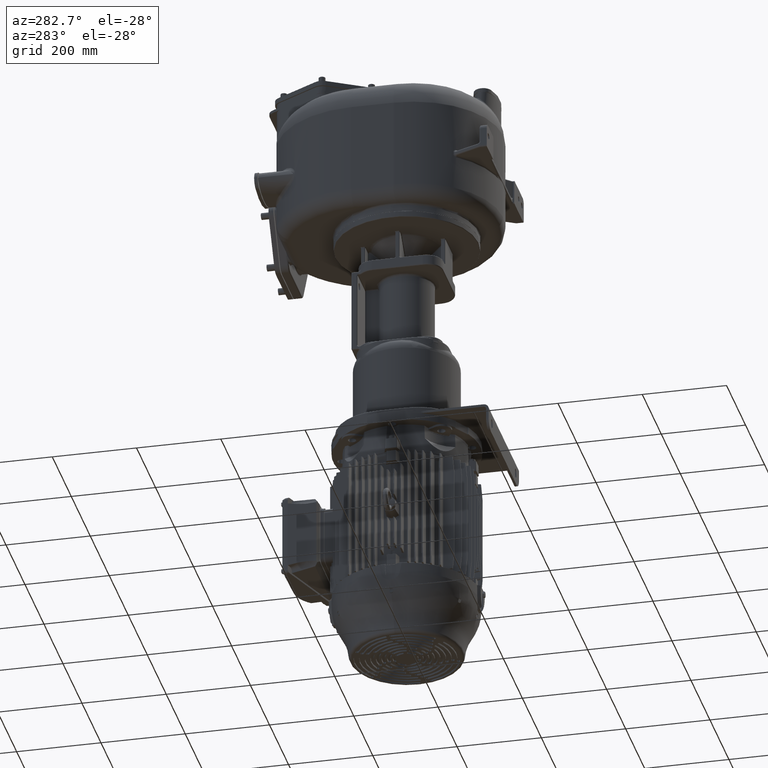
[diagram: clean part render]
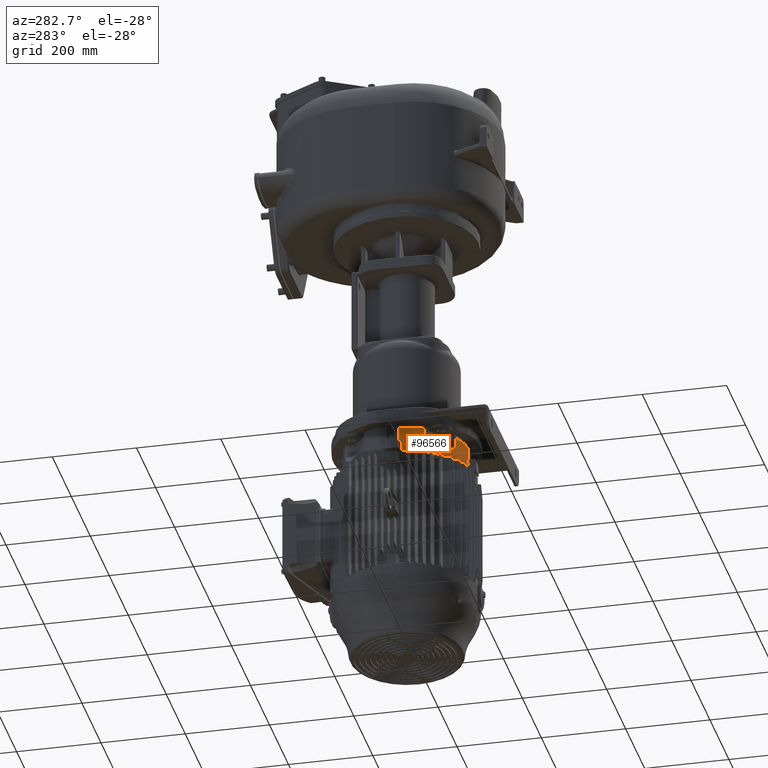
[diagram: same view with one face highlighted and labeled with its STEP entity id]
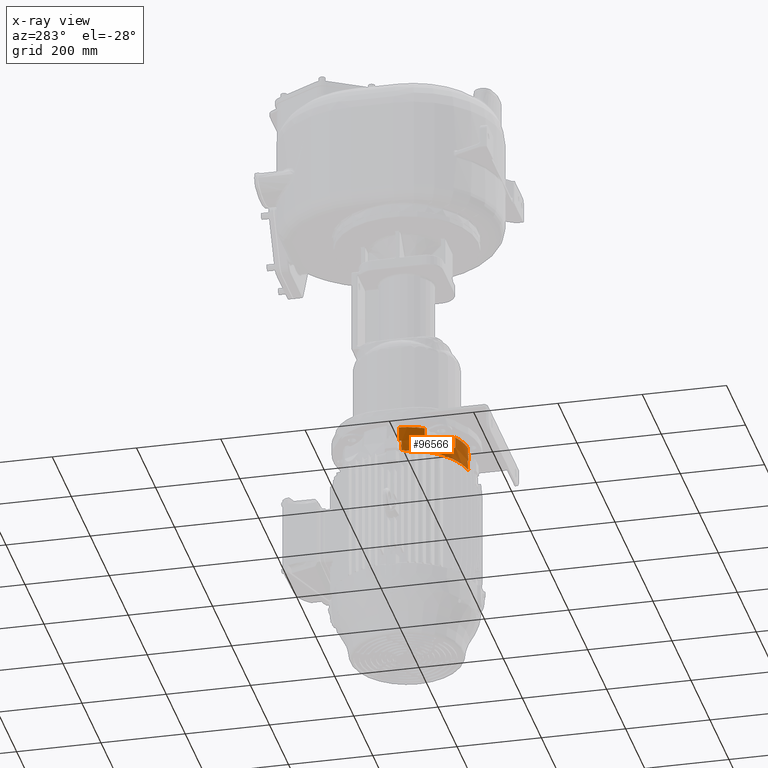
[diagram: x-ray of the same camera — body ghosted, the highlighted face saturated]
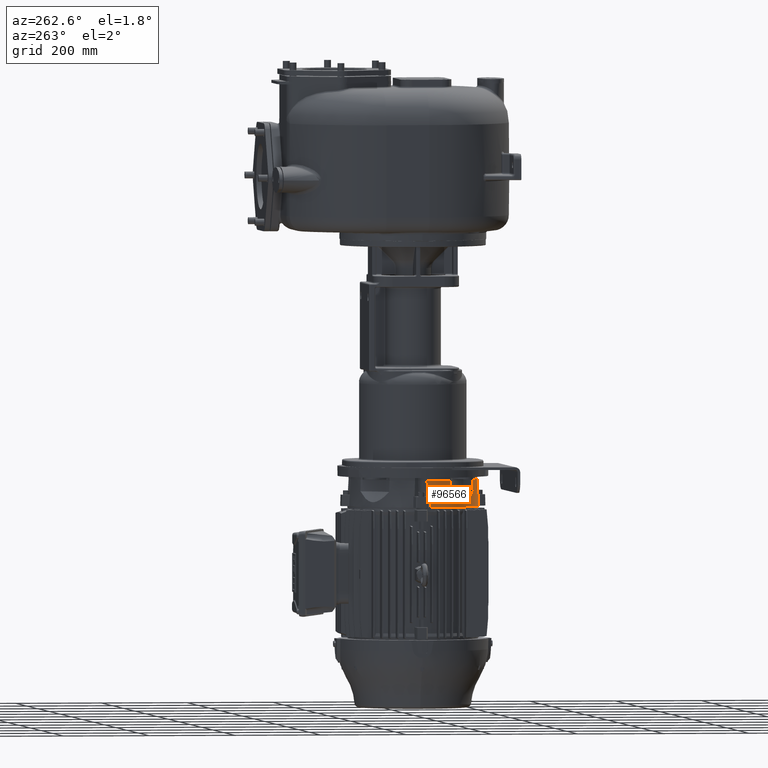
[diagram: same view with one face highlighted and labeled with its STEP entity id]
A machine part, auxiliary view. The second image highlights one B-rep face of the part: STEP entity #96566.
The next image is the same camera in x-ray: the body ghosted, the highlighted face saturated — about 0% of this face is hidden behind the body in this view.
A second angle (auxiliary view) of the same face is appended — the face is thin or edge-on in the first view.
In plain terms, the highlighted conical surface has half-angle 3 deg.
Its self-contained STEP definition (entity closure, byte-faithful):
#13877=CARTESIAN_POINT('',(0.E0,2.29E2,-7.674E2));
#13878=DIRECTION('',(0.E0,0.E0,-1.E0));
#13879=DIRECTION('',(-1.009222502529E-1,-9.948943156958E-1,0.E0));
#13880=AXIS2_PLACEMENT_3D('',#13877,#13878,#13879);
#14160=CARTESIAN_POINT('',(0.E0,2.29E2,-7.674E2));
#14161=DIRECTION('',(0.E0,0.E0,-1.E0));
#14162=DIRECTION('',(-9.900676829128E-1,-1.405915475827E-1,0.E0));
#14163=AXIS2_PLACEMENT_3D('',#14160,#14161,#14162);
#34868=CARTESIAN_POINT('',(-1.399247842907E1,8.093254581127E1,-7.3095E2));
#34869=CARTESIAN_POINT('',(-1.412558388974E1,8.073500678537E1,
-7.349414991750E2));
#34870=CARTESIAN_POINT('',(-1.439270359768E1,8.033822506534E1,
-7.429634889598E2));
#34871=CARTESIAN_POINT('',(-1.479607760655E1,7.973798182271E1,
-7.551127230926E2));
#34872=CARTESIAN_POINT('',(-1.506683293540E1,7.933437050553E1,
-7.632911631350E2));
#34873=CARTESIAN_POINT('',(-1.520266515202E1,7.913170925861E1,-7.674E2));
#34875=CARTESIAN_POINT('',(0.E0,2.29E2,-7.934E2));
#34876=DIRECTION('',(0.E0,0.E0,1.E0));
#34877=DIRECTION('',(-9.899239479024E-1,-1.416000613322E-1,0.E0));
#34878=AXIS2_PLACEMENT_3D('',#34875,#34876,#34877);
#34880=CARTESIAN_POINT('',(-1.491412189571E2,2.078216551823E2,
-7.673999977903E2));
#34881=CARTESIAN_POINT('',(-1.492877060444E2,2.077835970678E2,
-7.702695580529E2));
#34882=CARTESIAN_POINT('',(-1.495813778442E2,2.077073010814E2,
-7.760215539741E2));
#34883=CARTESIAN_POINT('',(-1.500237618481E2,2.075923520274E2,
-7.846877791328E2));
#34884=CARTESIAN_POINT('',(-1.503199791248E2,2.075153717713E2,
-7.904915873142E2));
#34885=CARTESIAN_POINT('',(-1.504684397905E2,2.074767907286E2,
-7.933999983559E2));
#34887=CARTESIAN_POINT('',(-2.152320925365E1,7.853156033290E1,
-7.933999983429E2));
#34888=CARTESIAN_POINT('',(-2.148462821112E1,7.868002099857E1,
-7.904915873053E2));
#34889=CARTESIAN_POINT('',(-2.140764798109E1,7.897623809253E1,
-7.846877790765E2));
#34890=CARTESIAN_POINT('',(-2.129269891495E1,7.941862219529E1,
-7.760215540119E2));
#34891=CARTESIAN_POINT('',(-2.121640293855E1,7.971229391034E1,
-7.702695580659E2));
#34892=CARTESIAN_POINT('',(-2.117834482408E1,7.985878099828E1,
-7.673999977952E2));
#34968=CARTESIAN_POINT('',(-1.498682907414E2,2.137973348480E2,-7.674E2));
#34969=CARTESIAN_POINT('',(-1.496656294826E2,2.139331670726E2,
-7.632911628944E2));
#34970=CARTESIAN_POINT('',(-1.492620181496E2,2.142039224121E2,
-7.551127225313E2));
#34971=CARTESIAN_POINT('',(-1.486617749070E2,2.146072964209E2,
-7.429634884008E2));
#34972=CARTESIAN_POINT('',(-1.482649932028E2,2.148744161182E2,
-7.349414989354E2));
#34973=CARTESIAN_POINT('',(-1.480674541887E2,2.150075215709E2,-7.3095E2));
#34979=CARTESIAN_POINT('',(0.E0,2.29E2,-7.3095E2));
#34980=DIRECTION('',(0.E0,0.E0,1.E0));
#34981=DIRECTION('',(-9.955644946790E-1,-9.408154406972E-2,0.E0));
#34982=AXIS2_PLACEMENT_3D('',#34979,#34980,#34981);
#35430=CARTESIAN_POINT('',(0.E0,2.29E2,-7.3095E2));
#35431=DIRECTION('',(0.E0,0.E0,1.E0));
#35432=DIRECTION('',(-4.784974831379E-1,-8.780889241021E-1,0.E0));
#35433=AXIS2_PLACEMENT_3D('',#35430,#35431,#35432);
#35462=CARTESIAN_POINT('',(-7.230096250948E1,9.744613334209E1,
-7.573898429615E2));
#35463=CARTESIAN_POINT('',(-7.217577605067E1,9.755129197055E1,
-7.544808688657E2));
#35464=CARTESIAN_POINT('',(-7.192475404999E1,9.776247943013E1,
-7.486437339712E2));
#35465=CARTESIAN_POINT('',(-7.154629681777E1,9.808186813008E1,
-7.398308013251E2));
#35466=CARTESIAN_POINT('',(-7.129268680946E1,9.829656216414E1,
-7.339166993821E2));
#35467=CARTESIAN_POINT('',(-7.116555938124E1,9.840435075978E1,-7.3095E2));
#35469=CARTESIAN_POINT('',(-1.305956492402E2,1.578344406188E2,-7.3095E2));
#35470=CARTESIAN_POINT('',(-1.307034378377E2,1.577073131884E2,
-7.339166994329E2));
#35471=CARTESIAN_POINT('',(-1.309181318742E2,1.574537031772E2,
-7.398308014435E2));
#35472=CARTESIAN_POINT('',(-1.312375205741E2,1.570752459449E2,
-7.486437340891E2));
#35473=CARTESIAN_POINT('',(-1.314487080313E2,1.568242239472E2,
-7.544808689163E2));
#35474=CARTESIAN_POINT('',(-1.315538666579E2,1.566990374905E2,
-7.573898429615E2));
#35481=CARTESIAN_POINT('',(-1.315538666579E2,1.566990374905E2,
-7.573898429615E2));
#35482=CARTESIAN_POINT('',(-1.313837306023E2,1.563461129976E2,
-7.577883040703E2));
#35483=CARTESIAN_POINT('',(-1.310446576361E2,1.556506262461E2,
-7.585683669428E2));
#35484=CARTESIAN_POINT('',(-1.305399539096E2,1.546374932748E2,
-7.596895873344E2));
#35485=CARTESIAN_POINT('',(-1.300413195705E2,1.536571247873E2,
-7.607597034692E2));
#35486=CARTESIAN_POINT('',(-1.295474558449E2,1.527053714381E2,
-7.617839969666E2));
#35487=CARTESIAN_POINT('',(-1.290575064904E2,1.517792869773E2,
-7.627662427201E2));
#35488=CARTESIAN_POINT('',(-1.285708196910E2,1.508765048299E2,
-7.637094926341E2));
#35489=CARTESIAN_POINT('',(-1.280864268636E2,1.499942745939E2,
-7.646170692404E2));
#35490=CARTESIAN_POINT('',(-1.276048549357E2,1.491327033829E2,
-7.654892737639E2));
#35491=CARTESIAN_POINT('',(-1.271273759872E2,1.482931678101E2,
-7.663252178462E2));
#35492=CARTESIAN_POINT('',(-1.266538502392E2,1.474745251165E2,
-7.671265959665E2));
#35493=CARTESIAN_POINT('',(-1.261834745075E2,1.466746106371E2,
-7.678960135095E2));
#35494=CARTESIAN_POINT('',(-1.257164516749E2,1.458930668403E2,
-7.686342693214E2));
#35495=CARTESIAN_POINT('',(-1.252525720331E2,1.451288775327E2,
-7.693427796822E2));
#35496=CARTESIAN_POINT('',(-1.247917496285E2,1.443812923317E2,
-7.700226731119E2));
#35497=CARTESIAN_POINT('',(-1.243338655296E2,1.436495506999E2,
-7.706750629528E2));
#35498=CARTESIAN_POINT('',(-1.238788035126E2,1.429329408676E2,
-7.713009900633E2));
#35499=CARTESIAN_POINT('',(-1.234264458325E2,1.422307882640E2,
-7.719014363753E2));
#35500=CARTESIAN_POINT('',(-1.229766742037E2,1.415424545522E2,
-7.724773265709E2));
#35501=CARTESIAN_POINT('',(-1.225293728141E2,1.408673383353E2,
-7.730295305274E2));
#35502=CARTESIAN_POINT('',(-1.220843939725E2,1.402048242035E2,
-7.735589016637E2));
#35503=CARTESIAN_POINT('',(-1.216417340862E2,1.395545341031E2,
-7.740660893385E2));
#35504=CARTESIAN_POINT('',(-1.212009067414E2,1.389154190984E2,
-7.745522269445E2));
#35505=CARTESIAN_POINT('',(-1.207626332567E2,1.382881989460E2,
-7.750170915840E2));
#35506=CARTESIAN_POINT('',(-1.203266934693E2,1.376722228340E2,
-7.754615260825E2));
#35507=CARTESIAN_POINT('',(-1.198920611207E2,1.370657613826E2,
-7.758870718382E2));
#35508=CARTESIAN_POINT('',(-1.194584451886E2,1.364681836597E2,
-7.762943958551E2));
#35509=CARTESIAN_POINT('',(-1.190265924470E2,1.358802819747E2,
-7.766832172562E2));
#35510=CARTESIAN_POINT('',(-1.185960426947E2,1.353011940264E2,
-7.770543794426E2));
#35511=CARTESIAN_POINT('',(-1.181667669435E2,1.347306721138E2,
-7.774082834257E2));
#35512=CARTESIAN_POINT('',(-1.177386308855E2,1.341683375180E2,
-7.777454053892E2));
#35513=CARTESIAN_POINT('',(-1.173115102420E2,1.336138418014E2,
-7.780661820809E2));
#35514=CARTESIAN_POINT('',(-1.168852876801E2,1.330668593226E2,
-7.783710205577E2));
#35515=CARTESIAN_POINT('',(-1.164598395990E2,1.325270698311E2,
-7.786603080360E2));
#35516=CARTESIAN_POINT('',(-1.160350444744E2,1.319941685310E2,
-7.789344068129E2));
#35517=CARTESIAN_POINT('',(-1.156107822285E2,1.314678644752E2,
-7.791936560476E2));
#35518=CARTESIAN_POINT('',(-1.151869317274E2,1.309478768074E2,
-7.794383743270E2));
#35519=CARTESIAN_POINT('',(-1.147633704018E2,1.304339338297E2,
-7.796688605171E2));
#35520=CARTESIAN_POINT('',(-1.143399756432E2,1.299257742346E2,
-7.798853936646E2));
#35521=CARTESIAN_POINT('',(-1.139166236599E2,1.294231452702E2,
-7.800882342894E2));
#35522=CARTESIAN_POINT('',(-1.134931902901E2,1.289258033125E2,
-7.802776245696E2));
#35523=CARTESIAN_POINT('',(-1.130695500903E2,1.284335124170E2,
-7.804537893227E2));
#35524=CARTESIAN_POINT('',(-1.126455785898E2,1.279460465804E2,
-7.806169356285E2));
#35525=CARTESIAN_POINT('',(-1.122211499921E2,1.274631866983E2,
-7.807672544125E2));
#35526=CARTESIAN_POINT('',(-1.117961357789E2,1.269847187555E2,
-7.809049212199E2));
#35527=CARTESIAN_POINT('',(-1.113704064593E2,1.265104356012E2,
-7.810300958836E2));
#35528=CARTESIAN_POINT('',(-1.109438312419E2,1.260401363426E2,
-7.811429230063E2));
#35529=CARTESIAN_POINT('',(-1.105162789384E2,1.255736271057E2,
-7.812435321139E2));
#35530=CARTESIAN_POINT('',(-1.100876155549E2,1.251107182131E2,
-7.813320385353E2));
#35531=CARTESIAN_POINT('',(-1.096577077911E2,1.246512278055E2,
-7.814085429221E2));
#35532=CARTESIAN_POINT('',(-1.092264191315E2,1.241949774400E2,
-7.814731323796E2));
#35533=CARTESIAN_POINT('',(-1.087936100953E2,1.237417923213E2,
-7.815258803929E2));
#35534=CARTESIAN_POINT('',(-1.083591394455E2,1.232915024864E2,
-7.815668467893E2));
#35535=CARTESIAN_POINT('',(-1.079228630310E2,1.228439415145E2,
-7.815960779965E2));
#35536=CARTESIAN_POINT('',(-1.074846341369E2,1.223989468412E2,
-7.816136070731E2));
#35537=CARTESIAN_POINT('',(-1.070443026665E2,1.219563589014E2,
-7.816194537644E2));
#35538=CARTESIAN_POINT('',(-1.066017183927E2,1.215160243410E2,
-7.816136245779E2));
#35539=CARTESIAN_POINT('',(-1.061567270167E2,1.210777919855E2,
-7.815961130086E2));
#35540=CARTESIAN_POINT('',(-1.057091692866E2,1.206415120545E2,
-7.815668992980E2));
#35541=CARTESIAN_POINT('',(-1.052588829461E2,1.202070381270E2,
-7.815259504197E2));
#35542=CARTESIAN_POINT('',(-1.048057017440E2,1.197742262025E2,
-7.814732199899E2));
#35543=CARTESIAN_POINT('',(-1.043494557738E2,1.193429350844E2,
-7.814086482185E2));
#35544=CARTESIAN_POINT('',(-1.038899707749E2,1.189130257709E2,
-7.813321617590E2));
#35545=CARTESIAN_POINT('',(-1.034270675809E2,1.184843610508E2,
-7.812436734292E2));
#35546=CARTESIAN_POINT('',(-1.029605652301E2,1.180568084311E2,
-7.811430828046E2));
#35547=CARTESIAN_POINT('',(-1.024902725770E2,1.176302325526E2,
-7.810302742849E2));
#35548=CARTESIAN_POINT('',(-1.020159947432E2,1.172045013412E2,
-7.809051180330E2));
#35549=CARTESIAN_POINT('',(-1.015375313678E2,1.167794845151E2,
-7.807674694989E2));
#35550=CARTESIAN_POINT('',(-1.010546767642E2,1.163550538795E2,
-7.806171692761E2));
#35551=CARTESIAN_POINT('',(-1.005672164208E2,1.159310804621E2,
-7.804540417044E2));
#35552=CARTESIAN_POINT('',(-1.000749313382E2,1.155074385506E2,
-7.802778959049E2));
#35553=CARTESIAN_POINT('',(-9.957759564729E1,1.150840037772E2,
-7.800885248706E2));
#35554=CARTESIAN_POINT('',(-9.907497380360E1,1.146606510190E2,
-7.798857039794E2));
#35555=CARTESIAN_POINT('',(-9.856682220219E1,1.142372561039E2,
-7.796691911196E2));
#35556=CARTESIAN_POINT('',(-9.805288794502E1,1.138136950943E2,
-7.794387257606E2));
#35557=CARTESIAN_POINT('',(-9.753290957814E1,1.133898452421E2,
-7.791940288275E2));
#35558=CARTESIAN_POINT('',(-9.700661553091E1,1.129655840616E2,
-7.789348015552E2));
#35559=CARTESIAN_POINT('',(-9.647372466308E1,1.125407901743E2,
-7.786607252447E2));
#35560=CARTESIAN_POINT('',(-9.593394649315E1,1.121153438504E2,
-7.783714610220E2));
#35561=CARTESIAN_POINT('',(-9.538697510797E1,1.116891226783E2,
-7.780666459960E2));
#35562=CARTESIAN_POINT('',(-9.483249309801E1,1.112620052428E2,
-7.777458945900E2));
#35563=CARTESIAN_POINT('',(-9.427016938135E1,1.108338699522E2,
-7.774087967427E2));
#35564=CARTESIAN_POINT('',(-9.369965944453E1,1.104045958130E2,
-7.770549173644E2));
#35565=CARTESIAN_POINT('',(-9.312060355146E1,1.099740616900E2,
-7.766837945702E2));
#35566=CARTESIAN_POINT('',(-9.253262670399E1,1.095421469623E2,
-7.762949388941E2));
#35567=CARTESIAN_POINT('',(-9.193533847597E1,1.091087320769E2,
-7.758878325180E2));
#35568=CARTESIAN_POINT('',(-9.132832796995E1,1.086736956689E2,
-7.754619250267E2));
#35569=CARTESIAN_POINT('',(-9.071116504411E1,1.082369163789E2,
-7.750166331989E2));
#35570=CARTESIAN_POINT('',(-9.008339903178E1,1.077982728603E2,
-7.745513391810E2));
#35571=CARTESIAN_POINT('',(-8.944455725391E1,1.073576437429E2,
-7.740653883966E2));
#35572=CARTESIAN_POINT('',(-8.879414422641E1,1.069149081601E2,
-7.735580879293E2));
#35573=CARTESIAN_POINT('',(-8.813163990161E1,1.064699456989E2,
-7.730287041146E2));
#35574=CARTESIAN_POINT('',(-8.745649848829E1,1.060226368415E2,
-7.724764605237E2));
#35575=CARTESIAN_POINT('',(-8.676814408660E1,1.055728614408E2,
-7.719005332030E2));
#35576=CARTESIAN_POINT('',(-8.606597028960E1,1.051205000063E2,
-7.713000489626E2));
#35577=CARTESIAN_POINT('',(-8.534933729425E1,1.046654334609E2,
-7.706740815814E2));
#35578=CARTESIAN_POINT('',(-8.461757168490E1,1.042075448103E2,
-7.700216501394E2));
#35579=CARTESIAN_POINT('',(-8.386996149173E1,1.037467177612E2,
-7.693417135287E2));
#35580=CARTESIAN_POINT('',(-8.310574710330E1,1.032828339241E2,
-7.686331593392E2));
#35581=CARTESIAN_POINT('',(-8.232417118583E1,1.028158033726E2,
-7.678948521943E2));
#35582=CARTESIAN_POINT('',(-8.152424627989E1,1.023454331518E2,
-7.671254037555E2));
#35583=CARTESIAN_POINT('',(-8.070552631898E1,1.018718747100E2,
-7.663239289296E2));
#35584=CARTESIAN_POINT('',(-7.986601905837E1,1.013944258035E2,
-7.654879891225E2));
#35585=CARTESIAN_POINT('',(-7.900514321060E1,1.009132540147E2,
-7.646164693862E2));
#35586=CARTESIAN_POINT('',(-7.812400682766E1,1.004294617925E2,
-7.637100181389E2));
#35587=CARTESIAN_POINT('',(-7.722177853661E1,9.994306303887E1,
-7.627673637798E2));
#35588=CARTESIAN_POINT('',(-7.629556006143E1,9.945303123757E1,
-7.617849938216E2));
#35589=CARTESIAN_POINT('',(-7.534348016562E1,9.895898984462E1,
-7.607603612717E2));
#35590=CARTESIAN_POINT('',(-7.436270943463E1,9.846014699311E1,
-7.596898117999E2));
#35591=CARTESIAN_POINT('',(-7.334938114378E1,9.795534563874E1,
-7.585683756848E2));
#35592=CARTESIAN_POINT('',(-7.265387021896E1,9.761626130681E1,
-7.577882851213E2));
#35593=CARTESIAN_POINT('',(-7.230096250948E1,9.744613334209E1,
-7.573898429615E2));
#55723=VERTEX_POINT('',#35481);
#55724=VERTEX_POINT('',#35593);
#55727=CARTESIAN_POINT('',(-1.504684400812E2,2.074767906775E2,-7.934E2));
#55728=CARTESIAN_POINT('',(-2.152320932249E1,7.853155991883E1,-7.934E2));
#55729=VERTEX_POINT('',#55727);
#55730=VERTEX_POINT('',#55728);
#55731=VERTEX_POINT('',#34880);
#55732=VERTEX_POINT('',#34892);
#55749=CARTESIAN_POINT('',(-1.480674541887E2,2.150075215709E2,-7.3095E2));
#55751=VERTEX_POINT('',#55749);
#55768=VERTEX_POINT('',#34968);
#55784=CARTESIAN_POINT('',(-1.399247842907E1,8.093254581127E1,-7.3095E2));
#55785=VERTEX_POINT('',#55784);
#55786=VERTEX_POINT('',#34873);
#55787=CARTESIAN_POINT('',(-7.116555938124E1,9.840435075978E1,-7.3095E2));
#55788=CARTESIAN_POINT('',(-1.305956492402E2,1.578344406188E2,-7.3095E2));
#55789=VERTEX_POINT('',#55787);
#55790=VERTEX_POINT('',#55788);
#96539=CARTESIAN_POINT('',(0.E0,2.29E2,-7.62175E2));
#96540=DIRECTION('',(0.E0,0.E0,-1.E0));
#96541=DIRECTION('',(0.E0,1.E0,0.E0));
#96542=AXIS2_PLACEMENT_3D('',#96539,#96540,#96541);
#96543=CONICAL_SURFACE('',#96542,1.503635670919E2,3.E0);
#96544=ORIENTED_EDGE('',*,*,#71573,.F.);
#96546=ORIENTED_EDGE('',*,*,#96545,.F.);
#96547=ORIENTED_EDGE('',*,*,#71656,.T.);
#96549=ORIENTED_EDGE('',*,*,#96548,.T.);
#96551=ORIENTED_EDGE('',*,*,#96550,.T.);
#96553=ORIENTED_EDGE('',*,*,#96552,.T.);
#96555=ORIENTED_EDGE('',*,*,#96554,.T.);
#96557=ORIENTED_EDGE('',*,*,#96556,.T.);
#96559=ORIENTED_EDGE('',*,*,#96558,.T.);
#96560=ORIENTED_EDGE('',*,*,#96531,.T.);
#96561=ORIENTED_EDGE('',*,*,#71445,.T.);
#96563=ORIENTED_EDGE('',*,*,#96562,.F.);
#96564=EDGE_LOOP('',(#96544,#96546,#96547,#96549,#96551,#96553,#96555,#96557,
#96559,#96560,#96561,#96563));
#96565=FACE_OUTER_BOUND('',#96564,.F.);
#96566=ADVANCED_FACE('',(#96565),#96543,.T.);
#13881=CIRCLE('',#13880,1.506373977386E2);
#14164=CIRCLE('',#14163,1.506373977386E2);
#34874=B_SPLINE_CURVE_WITH_KNOTS('',3,(#34868,#34869,#34870,#34871,#34872,
#34873),.UNSPECIFIED.,.F.,.F.,(4,1,1,4),(0.E0,3.333333333333E-1,
6.666666666667E-1,1.E0),.UNSPECIFIED.);
#34879=CIRCLE('',#34878,1.52E2);
#34886=B_SPLINE_CURVE_WITH_KNOTS('',3,(#34880,#34881,#34882,#34883,#34884,
#34885),.UNSPECIFIED.,.F.,.F.,(4,1,1,4),(0.E0,3.333333333333E-1,
6.666666666667E-1,1.E0),.UNSPECIFIED.);
#34893=B_SPLINE_CURVE_WITH_KNOTS('',3,(#34887,#34888,#34889,#34890,#34891,
#34892),.UNSPECIFIED.,.F.,.F.,(4,1,1,4),(0.E0,3.333333333333E-1,
6.666666666667E-1,1.E0),.UNSPECIFIED.);
#34974=B_SPLINE_CURVE_WITH_KNOTS('',3,(#34968,#34969,#34970,#34971,#34972,
#34973),.UNSPECIFIED.,.F.,.F.,(4,1,1,4),(0.E0,3.333333333333E-1,
6.666666666667E-1,1.E0),.UNSPECIFIED.);
#34983=CIRCLE('',#34982,1.487271341838E2);
#35434=CIRCLE('',#35433,1.487271341838E2);
#35468=B_SPLINE_CURVE_WITH_KNOTS('',3,(#35462,#35463,#35464,#35465,#35466,
#35467),.UNSPECIFIED.,.F.,.F.,(4,1,1,4),(0.E0,3.333333333333E-1,
6.666666666667E-1,1.E0),.UNSPECIFIED.);
#35475=B_SPLINE_CURVE_WITH_KNOTS('',3,(#35469,#35470,#35471,#35472,#35473,
#35474),.UNSPECIFIED.,.F.,.F.,(4,1,1,4),(0.E0,3.333333333333E-1,
6.666666666667E-1,1.E0),.UNSPECIFIED.);
#35594=B_SPLINE_CURVE_WITH_KNOTS('',3,(#35481,#35482,#35483,#35484,#35485,
#35486,#35487,#35488,#35489,#35490,#35491,#35492,#35493,#35494,#35495,#35496,
#35497,#35498,#35499,#35500,#35501,#35502,#35503,#35504,#35505,#35506,#35507,
#35508,#35509,#35510,#35511,#35512,#35513,#35514,#35515,#35516,#35517,#35518,
#35519,#35520,#35521,#35522,#35523,#35524,#35525,#35526,#35527,#35528,#35529,
#35530,#35531,#35532,#35533,#35534,#35535,#35536,#35537,#35538,#35539,#35540,
#35541,#35542,#35543,#35544,#35545,#35546,#35547,#35548,#35549,#35550,#35551,
#35552,#35553,#35554,#35555,#35556,#35557,#35558,#35559,#35560,#35561,#35562,
#35563,#35564,#35565,#35566,#35567,#35568,#35569,#35570,#35571,#35572,#35573,
#35574,#35575,#35576,#35577,#35578,#35579,#35580,#35581,#35582,#35583,#35584,
#35585,#35586,#35587,#35588,#35589,#35590,#35591,#35592,#35593),.UNSPECIFIED.,
.F.,.F.,(4,1,1,1,1,1,1,1,1,1,1,1,1,1,1,1,1,1,1,1,1,1,1,1,1,1,1,1,1,1,1,1,1,1,1,
1,1,1,1,1,1,1,1,1,1,1,1,1,1,1,1,1,1,1,1,1,1,1,1,1,1,1,1,1,1,1,1,1,1,1,1,1,1,1,1,
1,1,1,1,1,1,1,1,1,1,1,1,1,1,1,1,1,1,1,1,1,1,1,1,1,1,1,1,1,1,1,1,1,1,1,4),(0.E0,
9.090909090909E-3,1.818181818182E-2,2.727272727273E-2,3.636363636364E-2,
4.545454545455E-2,5.454545454545E-2,6.363636363636E-2,7.272727272727E-2,
8.181818181818E-2,9.090909090909E-2,1.E-1,1.090909090909E-1,1.181818181818E-1,
1.272727272727E-1,1.363636363636E-1,1.454545454545E-1,1.545454545455E-1,
1.636363636364E-1,1.727272727273E-1,1.818181818182E-1,1.909090909091E-1,2.E-1,
2.090909090909E-1,2.181818181818E-1,2.272727272727E-1,2.363636363636E-1,
2.454545454545E-1,2.545454545455E-1,2.636363636364E-1,2.727272727273E-1,
2.818181818182E-1,2.909090909091E-1,3.E-1,3.090909090909E-1,3.181818181818E-1,
3.272727272727E-1,3.363636363636E-1,3.454545454545E-1,3.545454545455E-1,
3.636363636364E-1,3.727272727273E-1,3.818181818182E-1,3.909090909091E-1,4.E-1,
4.090909090909E-1,4.181818181818E-1,4.272727272727E-1,4.363636363636E-1,
4.454545454545E-1,4.545454545455E-1,4.636363636364E-1,4.727272727273E-1,
4.818181818182E-1,4.909090909091E-1,5.E-1,5.090909090909E-1,5.181818181818E-1,
5.272727272727E-1,5.363636363636E-1,5.454545454545E-1,5.545454545455E-1,
5.636363636364E-1,5.727272727273E-1,5.818181818182E-1,5.909090909091E-1,6.E-1,
6.090909090909E-1,6.181818181818E-1,6.272727272727E-1,6.363636363636E-1,
6.454545454545E-1,6.545454545455E-1,6.636363636364E-1,6.727272727273E-1,
6.818181818182E-1,6.909090909091E-1,7.E-1,7.090909090909E-1,7.181818181818E-1,
7.272727272727E-1,7.363636363636E-1,7.454545454545E-1,7.545454545455E-1,
7.636363636364E-1,7.727272727273E-1,7.818181818182E-1,7.909090909091E-1,8.E-1,
8.090909090909E-1,8.181818181818E-1,8.272727272727E-1,8.363636363636E-1,
8.454545454545E-1,8.545454545455E-1,8.636363636364E-1,8.727272727273E-1,
8.818181818182E-1,8.909090909091E-1,9.E-1,9.090909090909E-1,9.181818181818E-1,
9.272727272727E-1,9.363636363636E-1,9.454545454545E-1,9.545454545455E-1,
9.636363636364E-1,9.727272727273E-1,9.818181818182E-1,9.909090909091E-1,1.E0),
.UNSPECIFIED.);
#71445=EDGE_CURVE('',#55786,#55732,#13881,.T.);
#71573=EDGE_CURVE('',#55729,#55730,#34879,.T.);
#71656=EDGE_CURVE('',#55731,#55768,#14164,.T.);
#96531=EDGE_CURVE('',#55785,#55786,#34874,.T.);
#96545=EDGE_CURVE('',#55731,#55729,#34886,.T.);
#96548=EDGE_CURVE('',#55768,#55751,#34974,.T.);
#96550=EDGE_CURVE('',#55751,#55790,#34983,.T.);
#96552=EDGE_CURVE('',#55790,#55723,#35475,.T.);
#96554=EDGE_CURVE('',#55723,#55724,#35594,.T.);
#96556=EDGE_CURVE('',#55724,#55789,#35468,.T.);
#96558=EDGE_CURVE('',#55789,#55785,#35434,.T.);
#96562=EDGE_CURVE('',#55730,#55732,#34893,.T.);